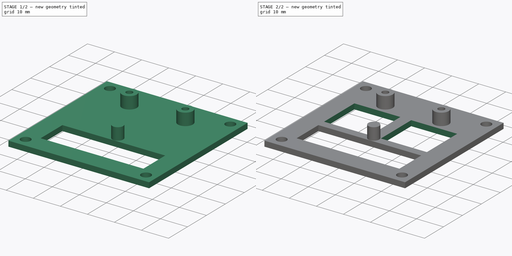
[diagram: build sequence overview — one tinted view per stage of 2, left to right]
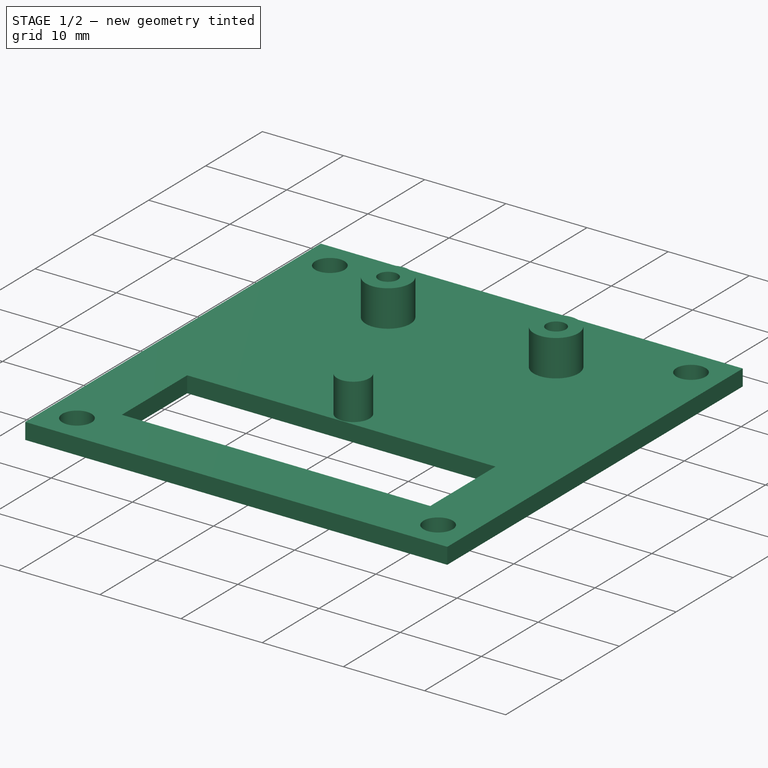
[diagram: stage 1 of 2 — iso view after this stage's code; geometry added in this stage tinted green]
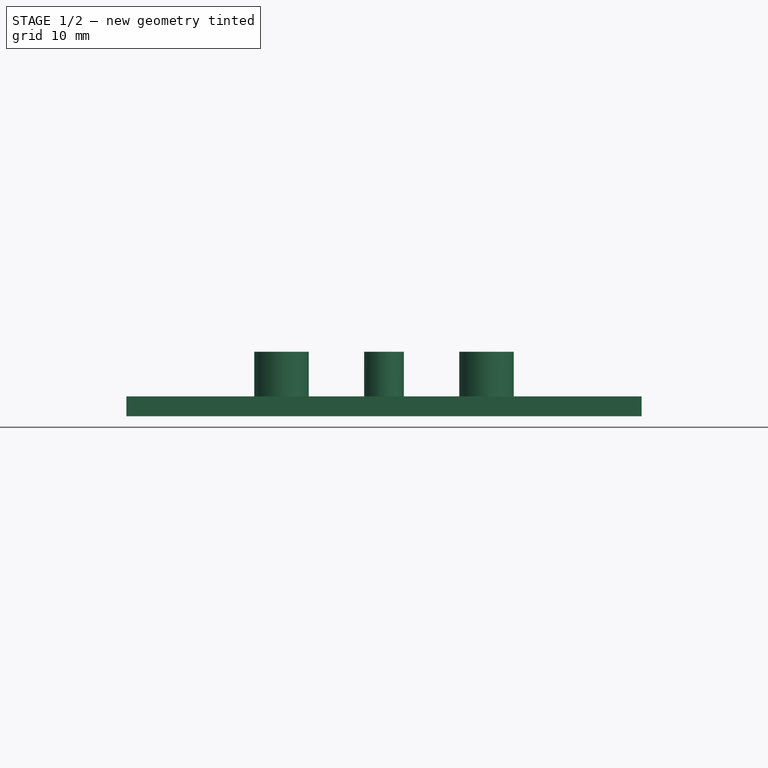
[diagram: stage 1 of 2 — front view after this stage's code; geometry added in this stage tinted green]
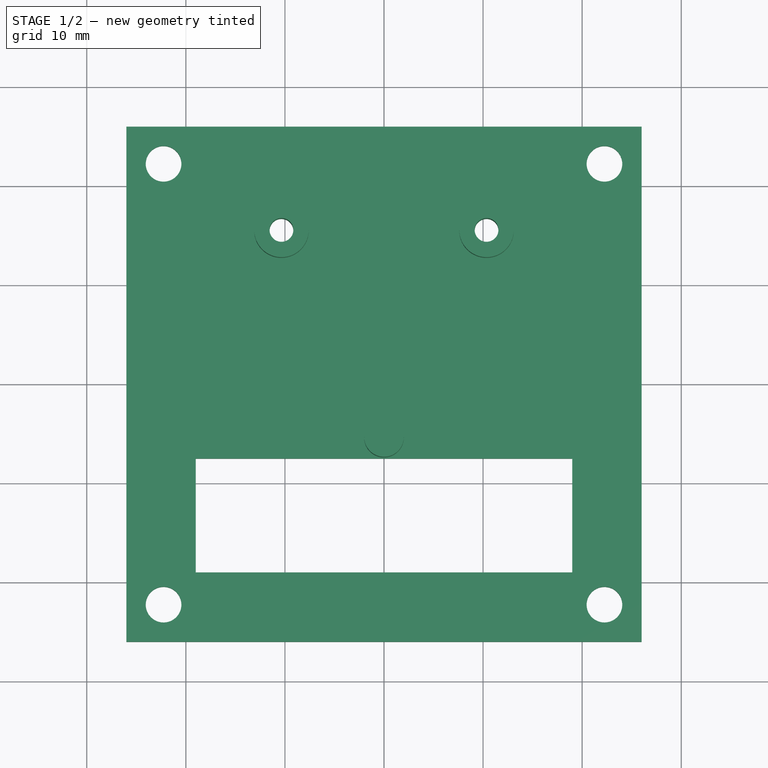
[diagram: stage 1 of 2 — top view after this stage's code; geometry added in this stage tinted green]
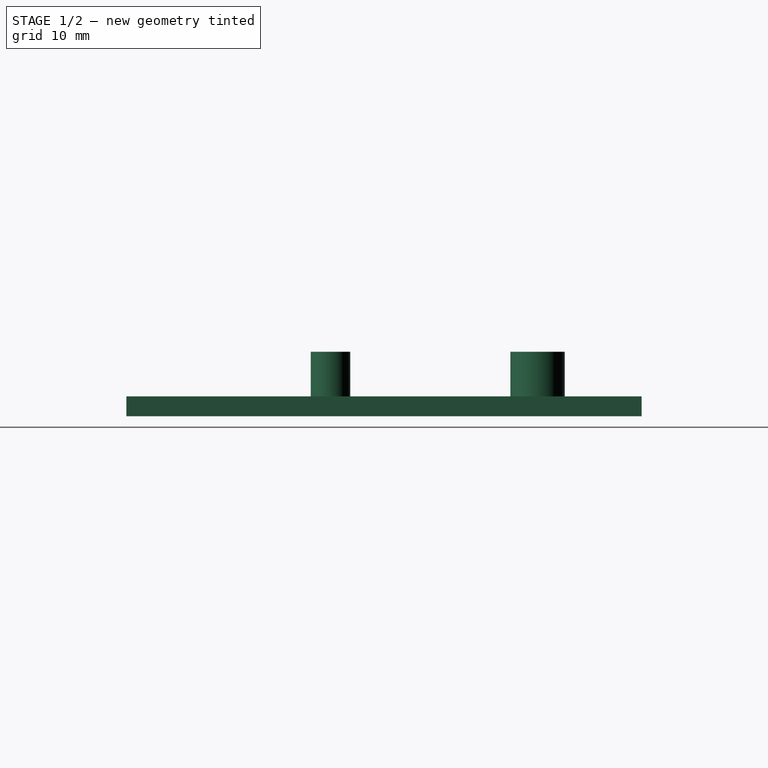
[diagram: stage 1 of 2 — right view after this stage's code; geometry added in this stage tinted green]
FCSTD DOCUMENT  (FreeCAD 0.14R3700 (Git))
Label: gps_mountV2
License: CC-BY 3.0
LicenseURL: http://creativecommons.org/licenses/by/3.0/
objects: Sketcher::SketchObject×3, Drawing::FeatureViewPart×3, PartDesign::Pad×2, PartDesign::Pocket×1, Drawing::FeaturePage×1
note: 9 computed .brp shape members not serialized (recipe doc carries the construction recipe); baked Part::Feature solids carry a one-line shape summary decoded from their .brp

FEATURE [Sketcher::SketchObject] Sketch
  sketch-geometry (18):
    g0: LineSegment StartX=-26 StartY=26 StartZ=0 EndX=26 EndY=26 EndZ=0
    g1: LineSegment StartX=26 StartY=26 StartZ=0 EndX=26 EndY=-26 EndZ=0
    g2: LineSegment StartX=26 StartY=-26 StartZ=0 EndX=-26 EndY=-26 EndZ=0
    g3: LineSegment StartX=-26 StartY=-26 StartZ=0 EndX=-26 EndY=26 EndZ=0
    g4: LineSegment StartX=19 StartY=-19 StartZ=0 EndX=-19 EndY=-19 EndZ=0
    g5: LineSegment StartX=-19 StartY=-19 StartZ=0 EndX=-19 EndY=-7.5 EndZ=0
    g6: Circle CenterX=22.25 CenterY=22.25 CenterZ=0 NormalX=0 NormalY=0 NormalZ=1 Radius=1.8
    g7: Circle CenterX=22.25 CenterY=-22.25 CenterZ=0 NormalX=0 NormalY=0 NormalZ=1 Radius=1.8
    g8: Circle CenterX=-22.25 CenterY=22.25 CenterZ=0 NormalX=0 NormalY=0 NormalZ=1 Radius=1.8
    g9: Circle CenterX=-22.25 CenterY=-22.25 CenterZ=0 NormalX=0 NormalY=0 NormalZ=1 Radius=1.8
    g10: LineSegment StartX=19 StartY=-7.5 StartZ=0 EndX=-19 EndY=-7.5 EndZ=0
    g11: LineSegment StartX=19 StartY=-7.5 StartZ=0 EndX=19 EndY=-19 EndZ=0
    g12: LineSegment [constr] StartX=-7.5 StartY=7.5 StartZ=0 EndX=7.5 EndY=7.5 EndZ=0
    g13: LineSegment [constr] StartX=7.5 StartY=7.5 StartZ=0 EndX=7.5 EndY=-7.5 EndZ=0
    g14: LineSegment [constr] StartX=7.5 StartY=-7.5 StartZ=0 EndX=-7.5 EndY=-7.5 EndZ=0
    g15: LineSegment [constr] StartX=-7.5 StartY=-7.5 StartZ=0 EndX=-7.5 EndY=7.5 EndZ=0
    g16: Circle CenterX=-10.35 CenterY=15.5 CenterZ=0 NormalX=0 NormalY=0 NormalZ=1 Radius=1.2
    g17: Circle CenterX=10.35 CenterY=15.5 CenterZ=0 NormalX=0 NormalY=0 NormalZ=1 Radius=1.2
  constraints (59):
    c: Coincident(g0,g1)
    c: Coincident(g1,g2)
    c: Coincident(g2,g3)
    c: Coincident(g3,g0)
    c: Horizontal(g0)
    c: Horizontal(g2)
    c: Vertical(g1)
    c: Vertical(g3)
    c: Equal(g3,g0)
    c: Equal(g0,g1)
    c: Equal(g2,g1)
    c: DistanceX(g0,g0) = 52
    c: DistanceY(g-1,g0) = 26
    c: DistanceX(g-1,g0) = -26
    c: Coincident(g11,g4)
    c: Coincident(g4,g5)
    c: Horizontal(g4)
    c: Vertical(g5)
    c: DistanceX(g11,g1) = 7
    c: DistanceY(g11,g1) = -7
    c: DistanceX(g2,g4) = 7
    c: Radius(g9) = 1.8
    c: Radius(g8) = 1.8
    c: Radius(g6) = 1.8
    c: Radius(g7) = 1.8
    c: DistanceX(g9,g2) = -3.75
    c: DistanceY(g2,g9) = 3.75
    c: DistanceX(g0,g8) = 3.75
    c: DistanceY(g0,g8) = -3.75
    c: DistanceX(g6,g0) = 3.75
    c: DistanceY(g6,g0) = 3.75
    c: DistanceX(g1,g7) = -3.75
    c: DistanceY(g1,g7) = 3.75
    c: Horizontal(g10)
    c: PointOnObject(g5,g10)
    c: PointOnObject(g11,g10)
    c: Coincident(g5,g10)
    c: Coincident(g10,g11)
    c: Coincident(g12,g13)
    c: Coincident(g13,g14)
    c: Coincident(g14,g15)
    c: Coincident(g15,g12)
    c: Horizontal(g12)
    c: Horizontal(g14)
    c: Vertical(g13)
    c: Vertical(g15)
    c: Equal(g15,g13)
    c: Equal(g15,g12)
    c: Equal(g15,g14)
    c: DistanceX(g12,g12) = 15
    c: DistanceX(g-1,g12) = -7.5
    c: DistanceY(g-1,g12) = 7.5
    c: Radius(g16) = 1.2
    c: DistanceY(g14,g16) = 23
    c: DistanceY(g13,g10) = 0
    c: Radius(g17) = 1.2
    c: DistanceX(g17,g16) = -20.7
    c: DistanceX(g-1,g16) = -10.35
    c: DistanceY(g16,g17) = 0
FEATURE [PartDesign::Pad] Pad
  Length = 2
  Length2 = 20
  Sketch = -> Sketch
  Type = 0
FEATURE [Sketcher::SketchObject] Sketch001
  ExternalGeometry = -> [Pad]
  Placement = pos=(0,0,2) rot=(0,0,1;0rad)
  Support = -> Pad [Face16]
  sketch-geometry (5):
    g0: Circle CenterX=0 CenterY=-5.4 CenterZ=0 NormalX=0 NormalY=0 NormalZ=1 Radius=2
    g1: Circle CenterX=-10.35 CenterY=15.5 CenterZ=0 NormalX=0 NormalY=0 NormalZ=1 Radius=1.2
    g2: Circle CenterX=-10.35 CenterY=15.5 CenterZ=0 NormalX=0 NormalY=0 NormalZ=1 Radius=2.75
    g3: Circle CenterX=10.35 CenterY=15.5 CenterZ=0 NormalX=0 NormalY=0 NormalZ=1 Radius=1.2
    g4: Circle CenterX=10.35 CenterY=15.5 CenterZ=0 NormalX=0 NormalY=0 NormalZ=1 Radius=2.75
  constraints (10):
    c: DistanceY(g-1,g0) = -5.4
    c: DistanceX(g-1,g0) = 0
    c: Radius(g1) = 1.2
    c: Coincident(g1,g-3)
    c: Radius(g2) = 2.75
    c: Coincident(g2,g1)
    c: Radius(g3) = 1.2
    c: Coincident(g3,g-4)
    c: Radius(g4) = 2.75
    c: Coincident(g3,g4)
FEATURE [PartDesign::Pad] Pad001
  Length = 4.5
  Length2 = 20
  Sketch = -> Sketch001
  Type = 0
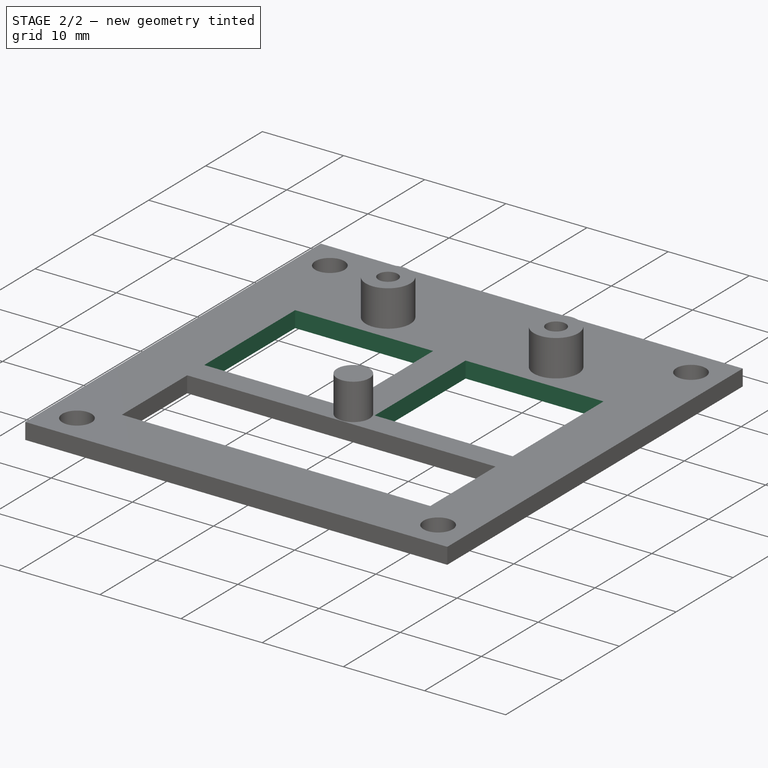
[diagram: stage 2 of 2 — iso view after this stage's code; geometry added in this stage tinted green]
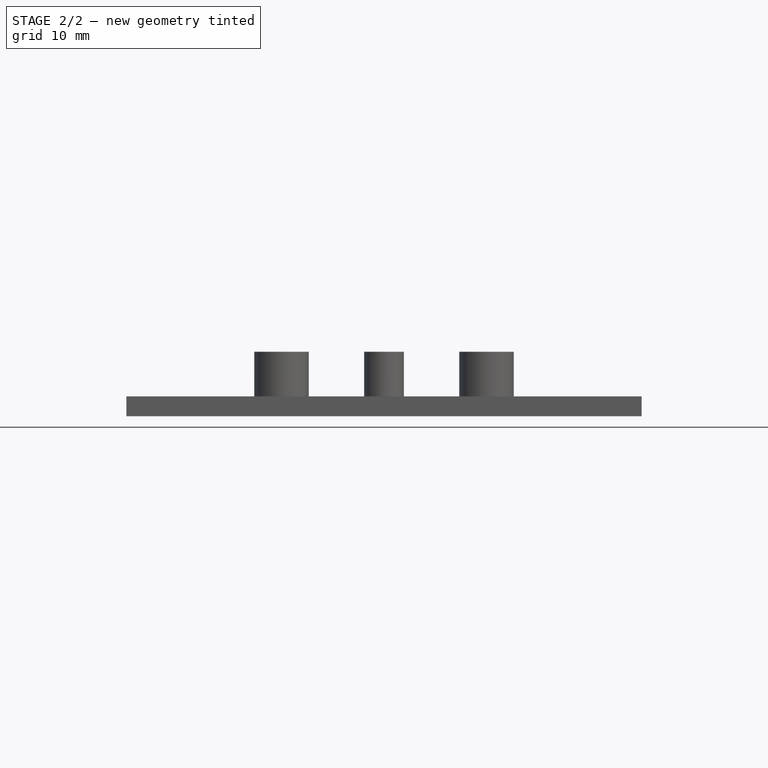
[diagram: stage 2 of 2 — front view after this stage's code; geometry added in this stage tinted green]
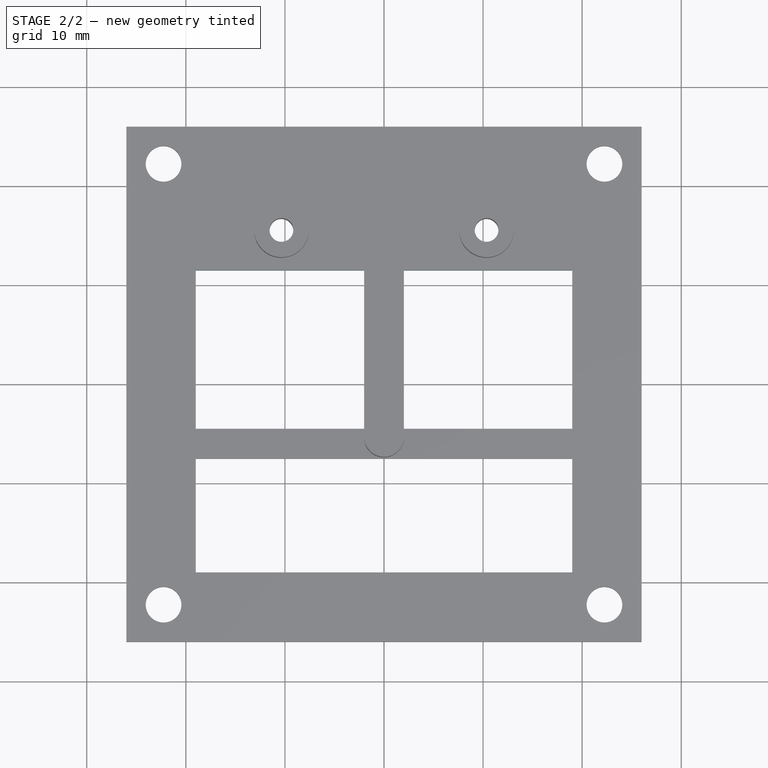
[diagram: stage 2 of 2 — top view after this stage's code; geometry added in this stage tinted green]
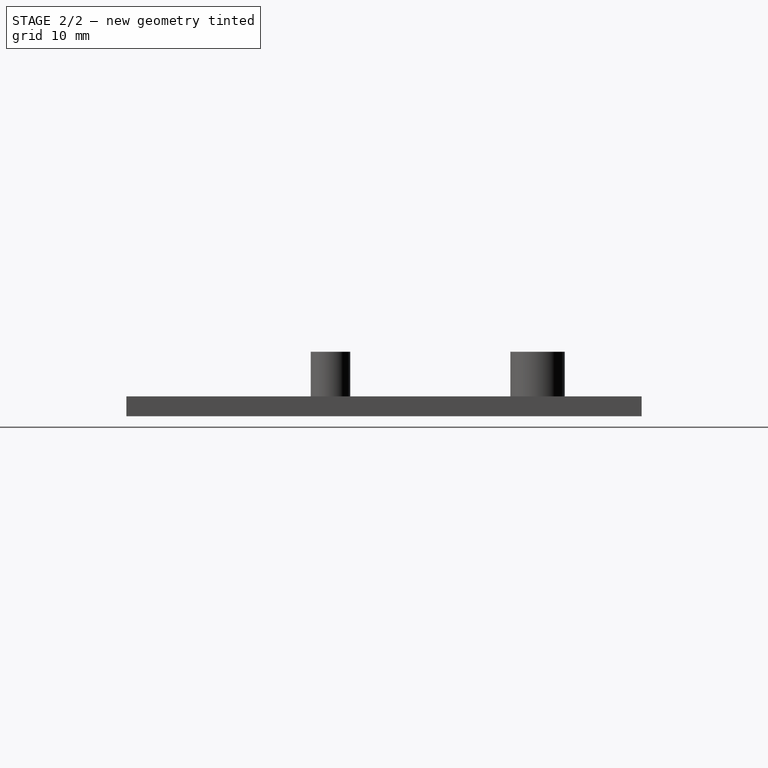
[diagram: stage 2 of 2 — right view after this stage's code; geometry added in this stage tinted green]
FEATURE [Sketcher::SketchObject] Sketch002
  ExternalGeometry = -> [Pad001]
  Placement = pos=(0,0,2) rot=(0,0,1;0rad)
  Support = -> Pad001 [Face5]
  sketch-geometry (8):
    g0: LineSegment StartX=-19 StartY=11.5 StartZ=0 EndX=-2 EndY=11.5 EndZ=0
    g1: LineSegment StartX=-2 StartY=11.5 StartZ=0 EndX=-2 EndY=-4.5 EndZ=0
    g2: LineSegment StartX=-2 StartY=-4.5 StartZ=0 EndX=-19 EndY=-4.5 EndZ=0
    g3: LineSegment StartX=-19 StartY=-4.5 StartZ=0 EndX=-19 EndY=11.5 EndZ=0
    g4: LineSegment StartX=2 StartY=11.5 StartZ=0 EndX=19 EndY=11.5 EndZ=0
    g5: LineSegment StartX=19 StartY=11.5 StartZ=0 EndX=19 EndY=-4.5 EndZ=0
    g6: LineSegment StartX=19 StartY=-4.5 StartZ=0 EndX=2 EndY=-4.5 EndZ=0
    g7: LineSegment StartX=2 StartY=-4.5 StartZ=0 EndX=2 EndY=11.5 EndZ=0
  constraints (24):
    c: Coincident(g0,g1)
    c: Coincident(g1,g2)
    c: Coincident(g2,g3)
    c: Coincident(g3,g0)
    c: Horizontal(g0)
    c: Horizontal(g2)
    c: Vertical(g1)
    c: Vertical(g3)
    c: DistanceX(g-1,g0) = -2
    c: DistanceY(g1,g-3) = -3
    c: DistanceY(g0,g1) = -16
    c: DistanceX(g-3,g2) = 0
    c: Coincident(g4,g5)
    c: Coincident(g5,g6)
    c: Coincident(g6,g7)
    c: Coincident(g7,g4)
    c: Horizontal(g4)
    c: Horizontal(g6)
    c: Vertical(g5)
    c: Vertical(g7)
    c: DistanceX(g-3,g5) = 0
    c: DistanceX(g-1,g6) = 2
    c: DistanceY(g5,g4) = 16
    c: DistanceY(g5,g-3) = -3
FEATURE [PartDesign::Pocket] Pocket
  Length = 5
  Sketch = -> Sketch002
  Type = 0
FEATURE [Drawing::FeatureViewPart] Ortho  label="Ortho_0_0"
  Direction = (1,0,0)
  HiddenWidth = 0.15
  LineWidth = 0.35
  Rotation = -90
  Scale = 2
  ShowHiddenLines = false
  ShowSmoothLines = false
  Source = -> Pocket
  Tolerance = 0.05
  ViewResult = <g id="Ortho_0_0"\n   transform="rotate(-90,294,193.667) translate(294,193.667) scale(2,2)"\n  >\n<g   stroke="rgb(0, 0, 0)"\n   stroke-width="0.175"\n   stroke-linecap="butt"\n   stroke-linejoin="miter"\n   fill="none"\n   transform="scale(1,-1)"\n  >\n<path id= "1" d=" M 6.5 -12.75 L 2 -12.75 " />\n<path id= "2" d=" M 6.5 -18.25 L 2 -18.25 " />\n<path id= "3" d=" M 6.5 7.4 L 2 7.4 " />\n<path id= "4" d=" M 6.5 3.4 L 2 3.4 " />\n</g>\n<g   stroke="rgb(0, 0, 0)"\n   stroke-width="0.175"\n   stroke-linecap="butt"\n   stroke-linejoin="miter"\n   fill="none"\n   transform="scale(1,-1)"\n  >\n<path id= "1" d=" M 0 -26 L 2 -26 " />\n<path id= "2" d=" M 0 26 L 2 26 " />\n<path id= "3" d=" M 0 -26 L 0 26 " />\n<path id= "4" d=" M 2 -26 L 2 26 " />\n<path d="M6.5,-15.5 L6.5,-15.8079  L6.5,-16.1119  L6.5,-16.4083  L6.5,-16.6932  L6.5,-16.9631  L6.5,-17.2146  L6.5,-17.4445  L6.5,-17.65  L6.5,-17.8285  L6.5,-17.9777  L6.5,-18.0957  L6.5,-18.1811  L6.5,-18.2327  L6.5,-18.25 " /><path d="M6.5,-12.75 L6.5,-12.7673  L6.5,-12.8189  L6.5,-12.9043  L6.5,-13.0223  L6.5,-13.1715  L6.5,-13.35  L6.5,-13.5555  L6.5,-13.7854  L6.5,-14.0369  L6.5,-14.3068  L6.5,-14.5917  L6.5,-14.8881  L6.5,-15.1921  L6.5,-15.5 " /><path d="M6.5,5.4 L6.5,5.17607  L6.5,4.95496  L6.5,4.73944  L6.5,4.53223  L6.5,4.33594  L6.5,4.15302  L6.5,3.98579  L6.5,3.83634  L6.5,3.70655  L6.5,3.59806  L6.5,3.51223  L6.5,3.45014  L6.5,3.41258  L6.5,3.4 " /><path d="M6.5,7.4 L6.5,7.38742  L6.5,7.34986  L6.5,7.28777  L6.5,7.20194  L6.5,7.09345  L6.5,6.96366  L6.5,6.81421  L6.5,6.64698  L6.5,6.46406  L6.5,6.26777  L6.5,6.06056  L6.5,5.84504  L6.5,5.62393  L6.5,5.4 " /></g>\n</g>
  X = 294
  Y = 193.667
FEATURE [Drawing::FeatureViewPart] Ortho001  label="Ortho_-1_1"
  Direction = (0.57735,-0.57735,0.57735)
  HiddenWidth = 0.15
  LineWidth = 0.35
  Rotation = -120
  Scale = 3
  ShowHiddenLines = false
  ShowSmoothLines = false
  Source = -> Pocket
  Tolerance = 0.05
  ViewResult = <blob: 5243 chars omitted>
  X = 126
  Y = 103.294
FEATURE [Drawing::FeatureViewPart] Ortho002  label="Ortho_0_1"
  Direction = (0,0,1)
  HiddenWidth = 0.15
  LineWidth = 0.35
  Rotation = 90
  Scale = 2
  ShowHiddenLines = false
  ShowSmoothLines = false
  Source = -> Pocket
  Tolerance = 0.05
  ViewResult = <g id="Ortho_0_1"\n   transform="rotate(90,294,95.3333) translate(294,95.3333) scale(2,2)"\n  >\n<g   stroke="rgb(0, 0, 0)"\n   stroke-width="0.175"\n   stroke-linecap="butt"\n   stroke-linejoin="miter"\n   fill="none"\n   transform="scale(1,-1)"\n  >\n<path id= "1" d=" M -26 26 L 26 26 " />\n<path id= "2" d=" M -26 -26 L -26 26 " />\n<path id= "3" d=" M 26 26 L 26 -26 " />\n<path id= "4" d=" M 26 -26 L -26 -26 " />\n<path id= "5" d=" M 19 -19 L -19 -19 " />\n<path id= "6" d=" M 19 -7.5 L 19 -19 " />\n<path id= "7" d=" M -19 -19 L -19 -7.5 " />\n<path id= "8" d=" M 19 -7.5 L -19 -7.5 " />\n<circle cx ="-22.25" cy ="-22.25" r ="1.8" /><circle cx ="-22.25" cy ="22.25" r ="1.8" /><circle cx ="22.25" cy ="-22.25" r ="1.8" /><circle cx ="22.25" cy ="22.25" r ="1.8" /><path id= "13" d=" M -19 11.5 L -2 11.5 " />\n<path id= "14" d=" M -19 -4.5 L -19 11.5 " />\n<path id= "15" d=" M -2 -4.5 L -19 -4.5 " />\n<path id= "16" d=" M -2 11.5 L -2 -4.5 " />\n<path id= "17" d=" M 2 11.5 L 19 11.5 " />\n<path id= "18" d=" M 2 -4.5 L 2 11.5 " />\n<path id= "19" d=" M 19 -4.5 L 2 -4.5 " />\n<path id= "20" d=" M 19 11.5 L 19 -4.5 " />\n<circle cx ="-10.35" cy ="15.5" r ="2.75" /><circle cx ="10.35" cy ="15.5" r ="2.75" /><circle cx ="-7.21645e-016" cy ="-5.4" r ="2" /><circle cx ="10.35" cy ="15.5" r ="1.2" /><circle cx ="-10.35" cy ="15.5" r ="1.2" /></g>\n</g>
  X = 294
  Y = 95.3333
FEATURE [Drawing::FeaturePage] Page
  EditableTexts = AUTHOR NAME | CREATION DATE | SUPERVISOR NAME | CHECK DATE | SCALE | WEIGHT | NUMBER | SHEET | TITLE | SUBTITLE
  Group = -> [Ortho,Ortho001,Ortho002]
  Template = C:/Program Files/FreeCAD 0.14/data/Mod/Drawing/Templates/A3_Landscape.svg
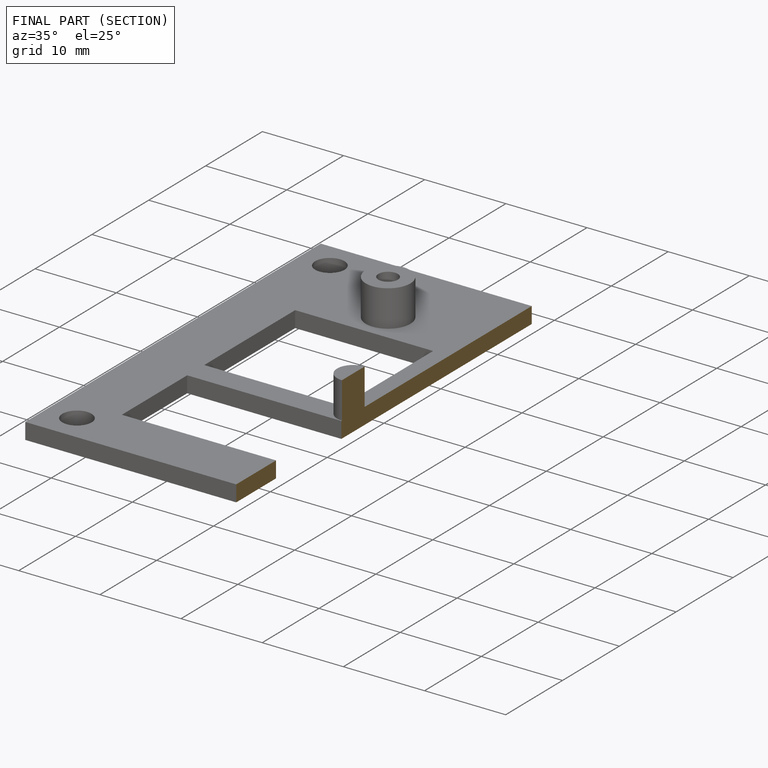
[diagram: finished part — half-section view (interior)]
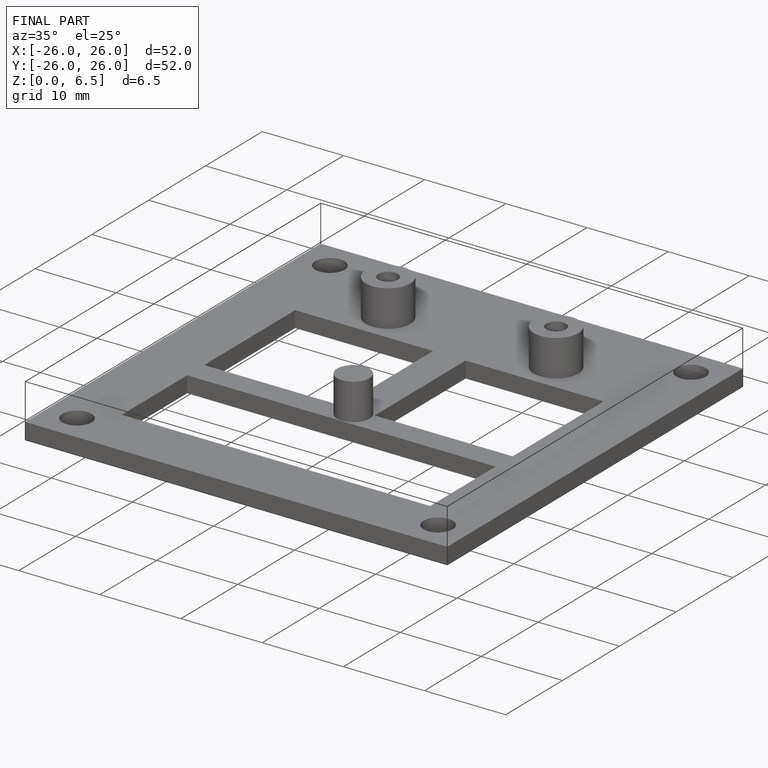
[diagram: finished part — iso view with bounding-box wireframe]
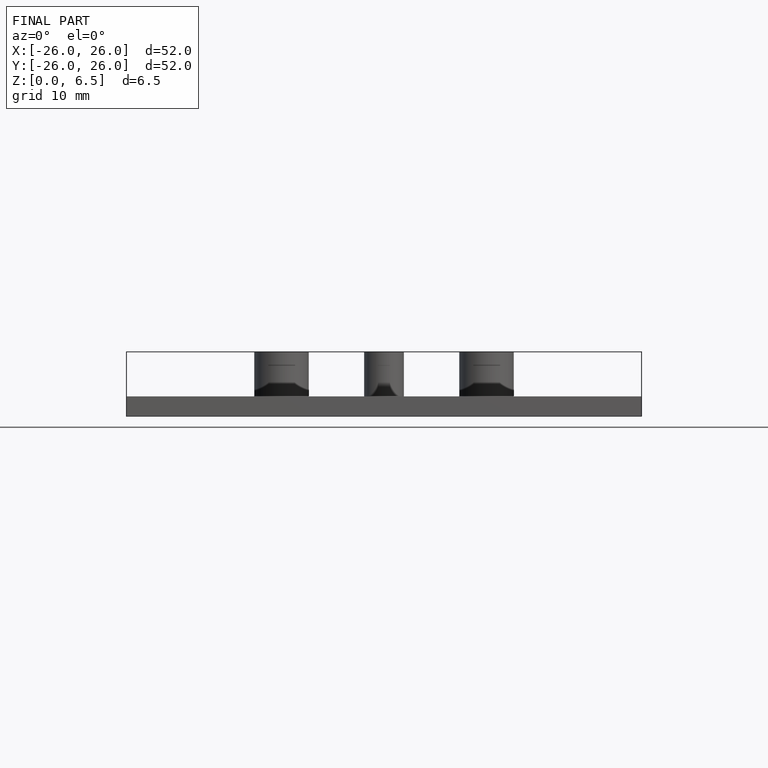
[diagram: finished part — front view with bounding-box wireframe]
